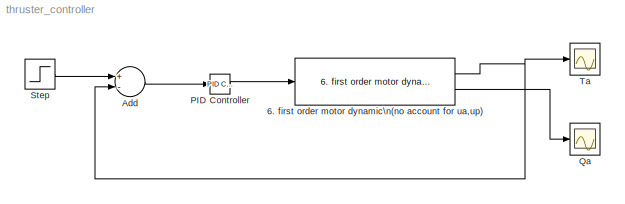
MODEL thruster_controller
KIND model
BLOCK [Reference] 6. first order motor dynamic\n(no account for ua,up)  REF=rov_design_analysis/Propeller\nModels/6. first order motor dynamic\n(no account for ua,up)
  Ports = [1, 2]
  ShowPortLabels = on
  SourceBlock = rov_design_analysis/Propeller\nModels/6. first order motor dynamic\n(no account for ua,up)
  SourceType = Thruster modeling
BLOCK [Sum] Add
  InputSameDT = off
  Inputs = +-
  OutDataTypeMode = Inherit via internal rule
  OutScaling = 2^-10
  Ports = [2, 1]
  SaturateOnIntegerOverflow = off
BLOCK [Reference] PID Controller   REF=simulink_extras/Additional\nLinear/PID Controller
  D = 11
  I = 0
  P = 11
  Ports = [1, 1]
  ShowPortLabels = on
  SourceBlock = simulink_extras/Additional\nLinear/PID Controller
  SourceType = PID Controller
BLOCK [Scope] Qa
  DataFormat = StructureWithTime
  NumInputPorts = 1
  Ports = [1]
  SaveName = ScopeData1
BLOCK [Step] Step
  After = 10
  SampleTime = 0
BLOCK [Scope] Ta
  DataFormat = StructureWithTime
  NumInputPorts = 1
  Ports = [1]
NET 6. first order motor dynamic\n(no account for ua,up):1 -> Add:2, Ta:1
LINE 6. first order motor dynamic\n(no account for ua,up):2 -> Qa:1
LINE Add:1 -> PID Controller :1
LINE PID Controller :1 -> 6. first order motor dynamic\n(no account for ua,up):1
LINE Step:1 -> Add:1
note: NET lines group one-source signal fan-out (src -> all destinations, sorted); 1:1 wires keep LINE
